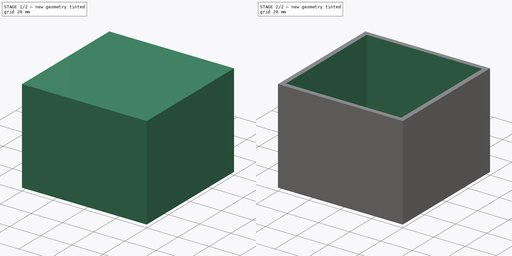
[diagram: build sequence overview — one tinted view per stage of 2, left to right]
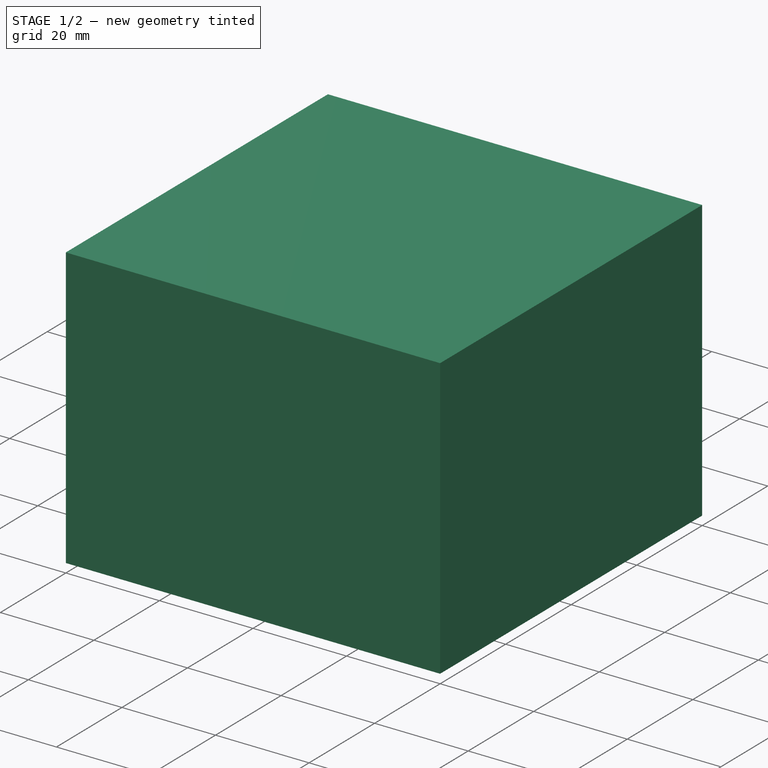
[diagram: stage 1 of 2 — iso view after this stage's code; geometry added in this stage tinted green]
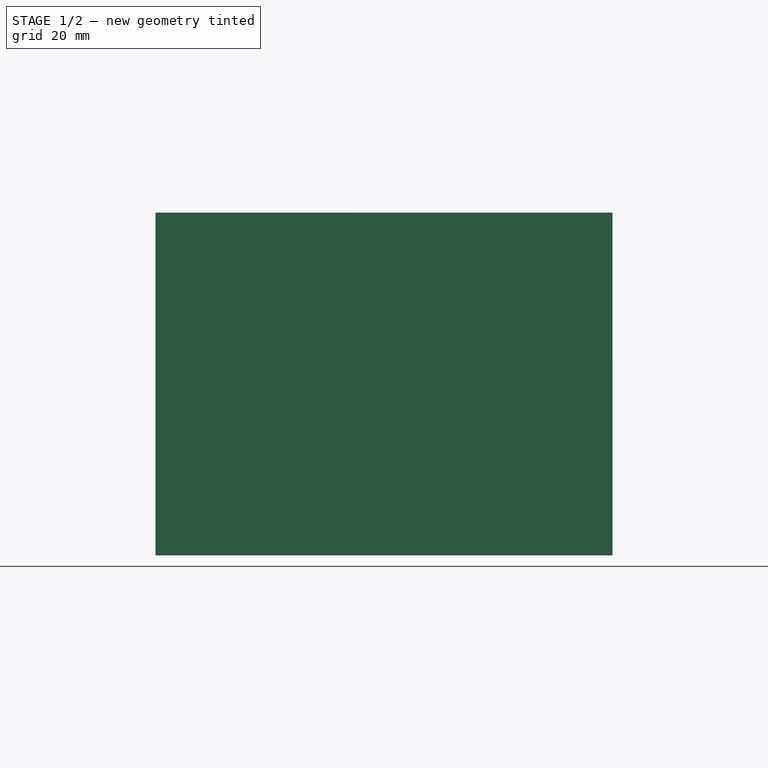
[diagram: stage 1 of 2 — front view after this stage's code; geometry added in this stage tinted green]
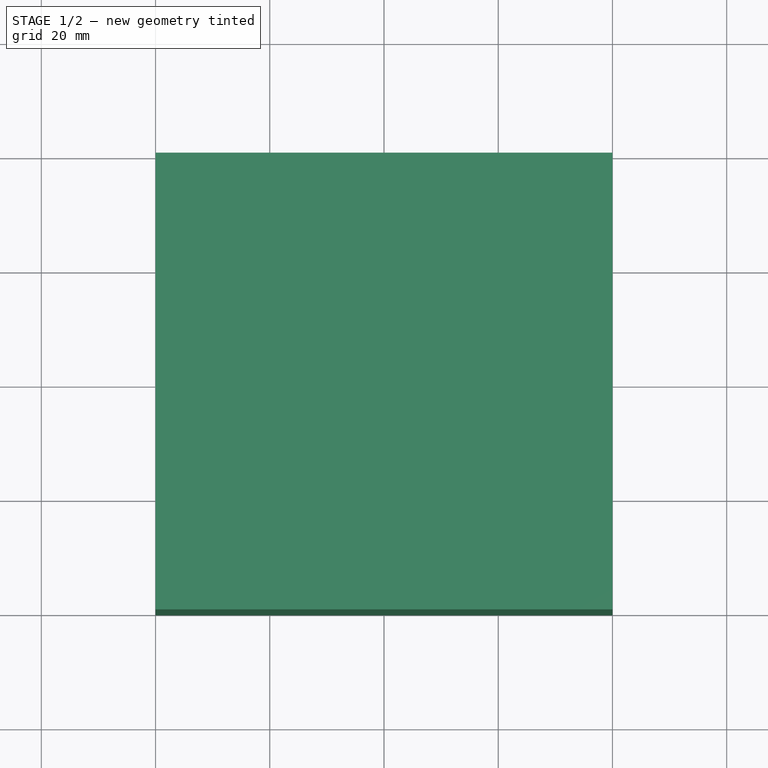
[diagram: stage 1 of 2 — top view after this stage's code; geometry added in this stage tinted green]
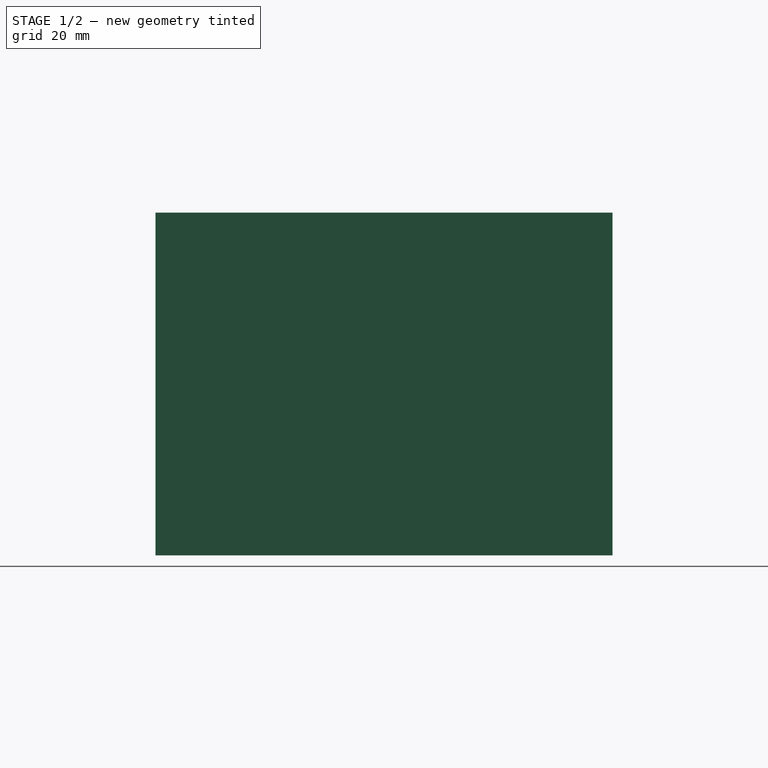
[diagram: stage 1 of 2 — right view after this stage's code; geometry added in this stage tinted green]
FCSTD DOCUMENT  (FreeCAD 0.20R29410 (Git))
Label: parametric_box
License: All rights reserved
LicenseURL: http://en.wikipedia.org/wiki/All_rights_reserved
objects: Sketcher::SketchObject×2, PartDesign::Pad×1, Spreadsheet::Sheet×1, PartDesign::Pocket×1, PartDesign::Body×1
note: 7 computed .brp shape members not serialized (recipe doc carries the construction recipe); baked Part::Feature solids carry a one-line shape summary decoded from their .brp

FEATURE [Sketcher::SketchObject] Sketch  label="box base"
  FullyConstrained = true
  MapMode = 5
  Support = -> [XY_Plane]
  expr: .Constraints.base_size = <<Spreadsheet>>.pbox_width
  expr: Constraints[10] = <<Spreadsheet>>.pbox_length
  sketch-geometry (4):
    g0: LineSegment StartX=-40 StartY=-40 StartZ=0 EndX=40 EndY=-40 EndZ=0
    g1: LineSegment StartX=40 StartY=-40 StartZ=0 EndX=40 EndY=40 EndZ=0
    g2: LineSegment StartX=40 StartY=40 StartZ=0 EndX=-40 EndY=40 EndZ=0
    g3: LineSegment StartX=-40 StartY=40 StartZ=0 EndX=-40 EndY=-40 EndZ=0
  constraints (11):
    c: Coincident(g0,g1)
    c: Coincident(g1,g2)
    c: Coincident(g2,g3)
    c: Coincident(g3,g0)
    c: Horizontal(g0)
    c: Horizontal(g2)
    c: Vertical(g1)
    c: Vertical(g3)
    c: Symmetric(g1,g0,g-1)
    c: Distance(g2) = 80  'base_size'
    c: Distance(g1) = 80
FEATURE [PartDesign::Pad] Pad  label="box body"
  Direction = (0,0,1)
  Length = 60
  Length2 = 100
  Profile = -> Sketch
  Type = 0
  expr: Length = <<Spreadsheet>>.pbox_height
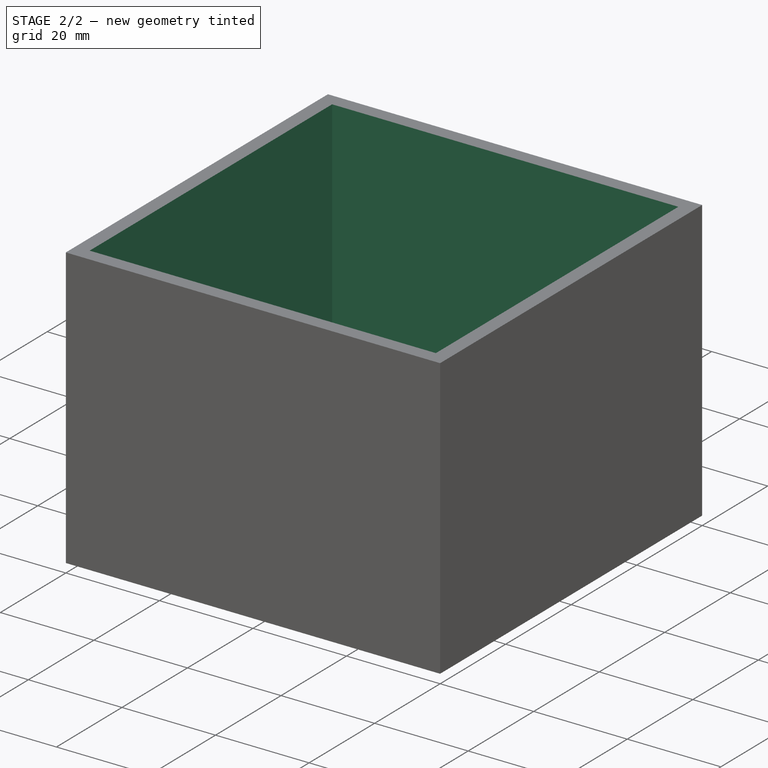
[diagram: stage 2 of 2 — iso view after this stage's code; geometry added in this stage tinted green]
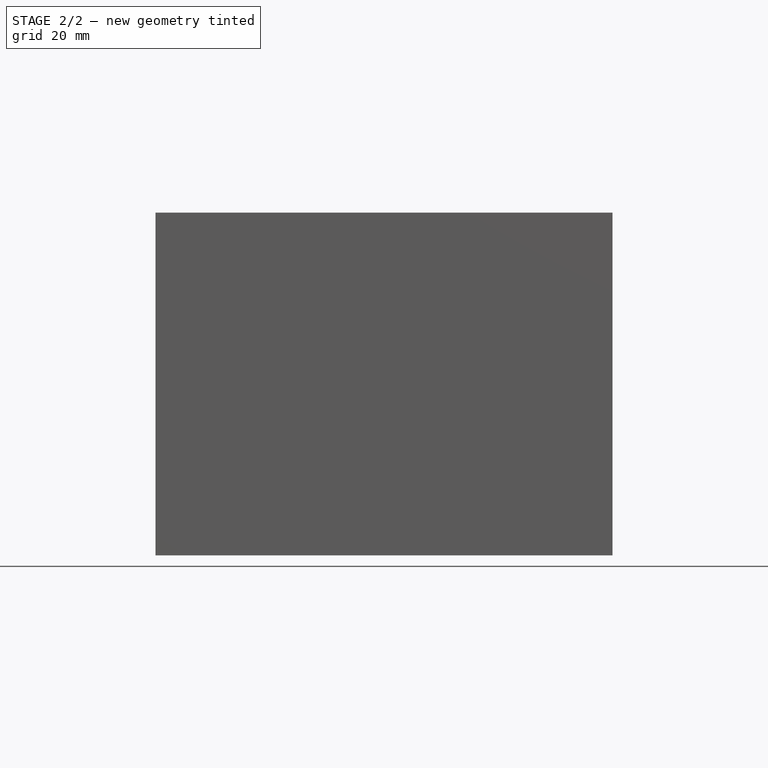
[diagram: stage 2 of 2 — front view after this stage's code; geometry added in this stage tinted green]
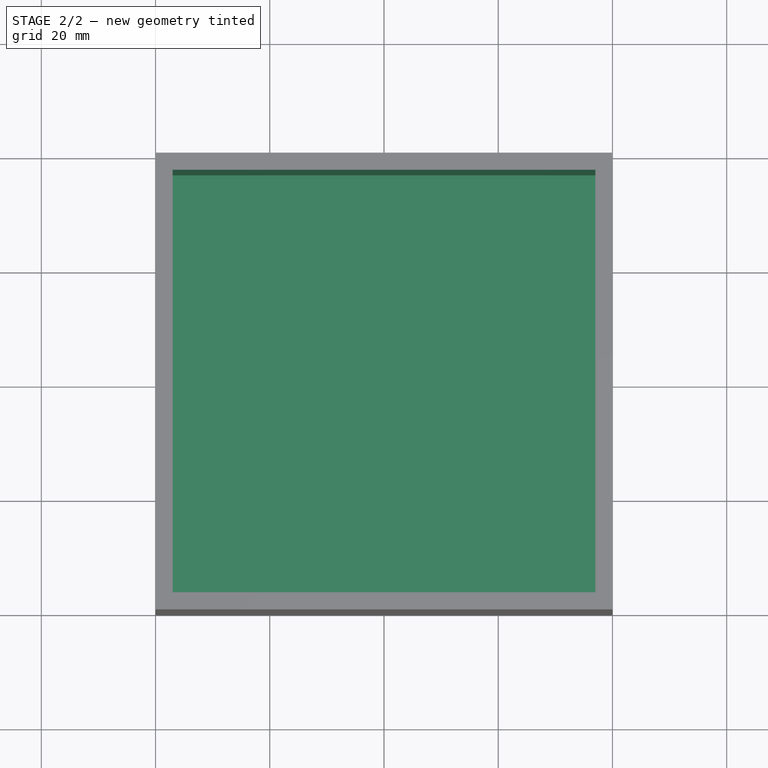
[diagram: stage 2 of 2 — top view after this stage's code; geometry added in this stage tinted green]
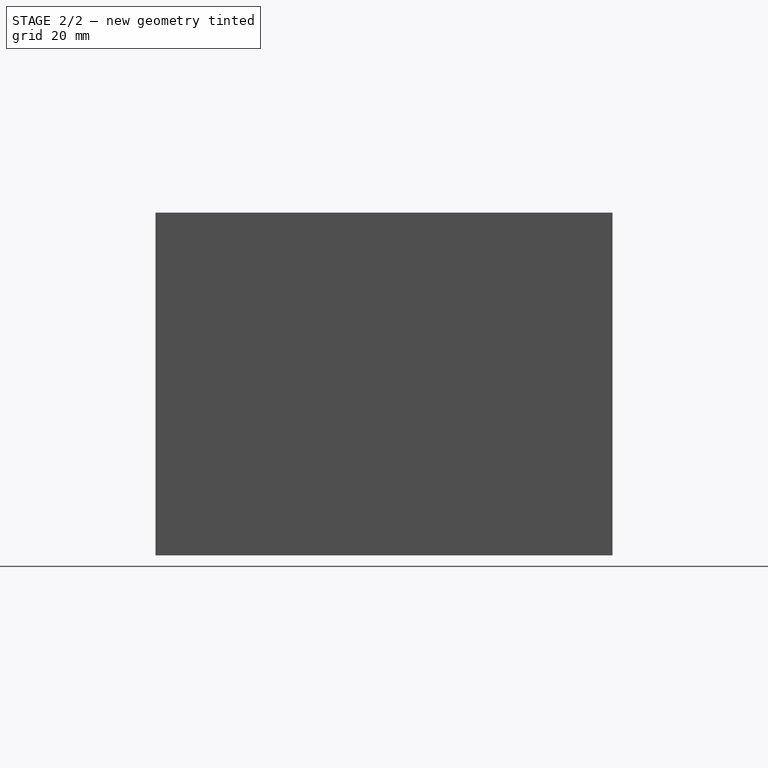
[diagram: stage 2 of 2 — right view after this stage's code; geometry added in this stage tinted green]
FEATURE [Spreadsheet::Sheet] Spreadsheet
  cells = A1=Box variables; B1=pbox_length; C1=pbox_width; D1=pbox_height; E1=pbox_wall; B2(pbox_length)=80; C2(pbox_width)=80; D2(pbox_height)=60; E2(pbox_wall)=3
FEATURE [Sketcher::SketchObject] Sketch001  label="cavity_base"
  ExternalGeometry = -> [Pad]
  FullyConstrained = true
  MapMode = 5
  Placement = pos=(0,0,60) rot=(0,0,1;0rad)
  Support = -> [Pad]
  expr: Constraints[10] = <<Spreadsheet>>.pbox_wall
  expr: Constraints[11] = <<Spreadsheet>>.pbox_wall
  expr: Constraints[8] = <<Spreadsheet>>.pbox_wall
  expr: Constraints[9] = <<Spreadsheet>>.pbox_wall
  sketch-geometry (4):
    g0: LineSegment StartX=-37 StartY=-37 StartZ=0 EndX=37 EndY=-37 EndZ=0
    g1: LineSegment StartX=37 StartY=-37 StartZ=0 EndX=37 EndY=37 EndZ=0
    g2: LineSegment StartX=37 StartY=37 StartZ=0 EndX=-37 EndY=37 EndZ=0
    g3: LineSegment StartX=-37 StartY=37 StartZ=0 EndX=-37 EndY=-37 EndZ=0
  constraints (12):
    c: Coincident(g0,g1)
    c: Coincident(g1,g2)
    c: Coincident(g2,g3)
    c: Coincident(g3,g0)
    c: Horizontal(g0)
    c: Horizontal(g2)
    c: Vertical(g1)
    c: Vertical(g3)
    c: DistanceY(g1,g-3) = 3
    c: DistanceX(g1,g-3) = 3
    c: DistanceX(g-4,g0) = 3
    c: DistanceY(g-4,g0) = 3
FEATURE [PartDesign::Pocket] Pocket  label="box_cavity"
  BaseFeature = -> Pad
  Direction = (0,0,-1)
  Length = 57
  Length2 = 100
  Profile = -> Sketch001
  Type = 0
  expr: Length = <<Spreadsheet>>.pbox_height - <<Spreadsheet>>.pbox_wall
FEATURE [PartDesign::Body] Body
  Group = -> [Sketch,Pad,Sketch001,Pocket]
  Origin = -> Origin
  Tip = -> Pocket
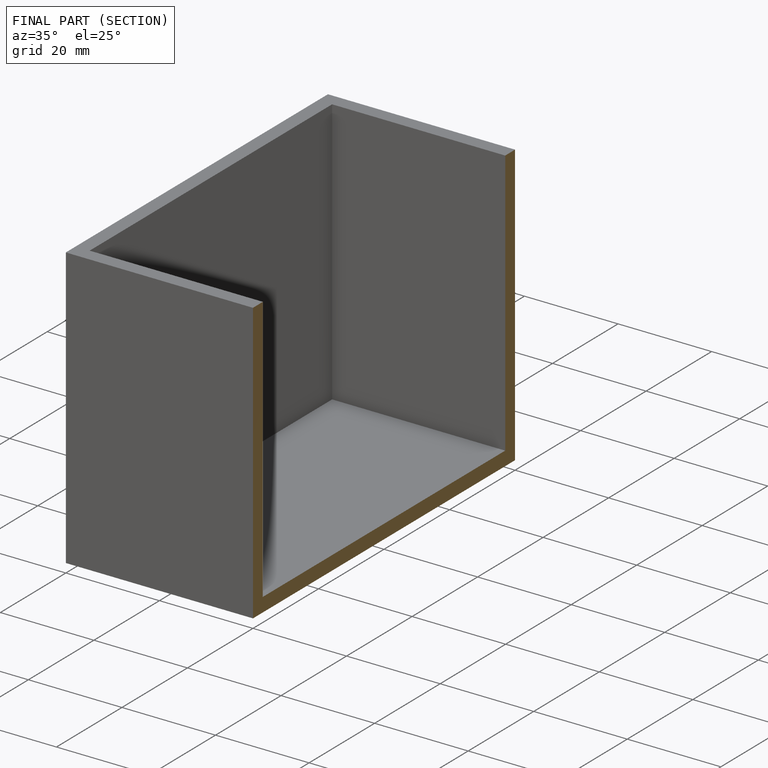
[diagram: finished part — half-section view (interior)]
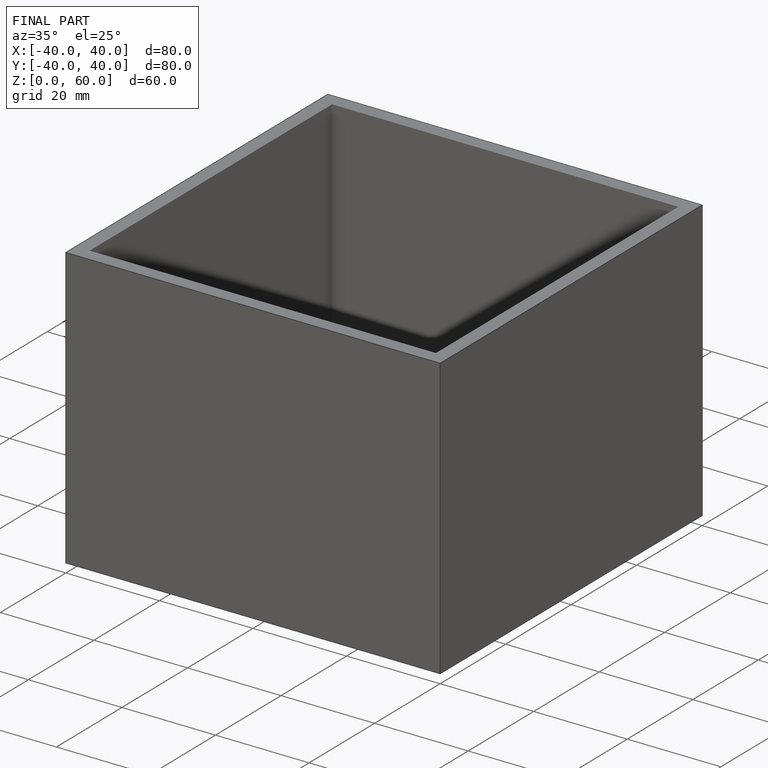
[diagram: finished part — iso view with bounding-box wireframe]
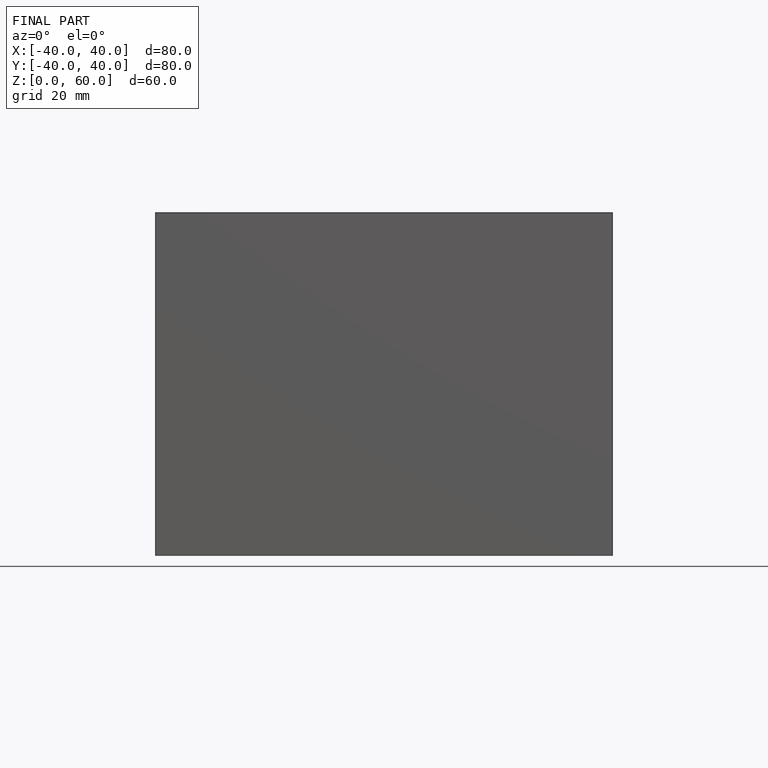
[diagram: finished part — front view with bounding-box wireframe]
